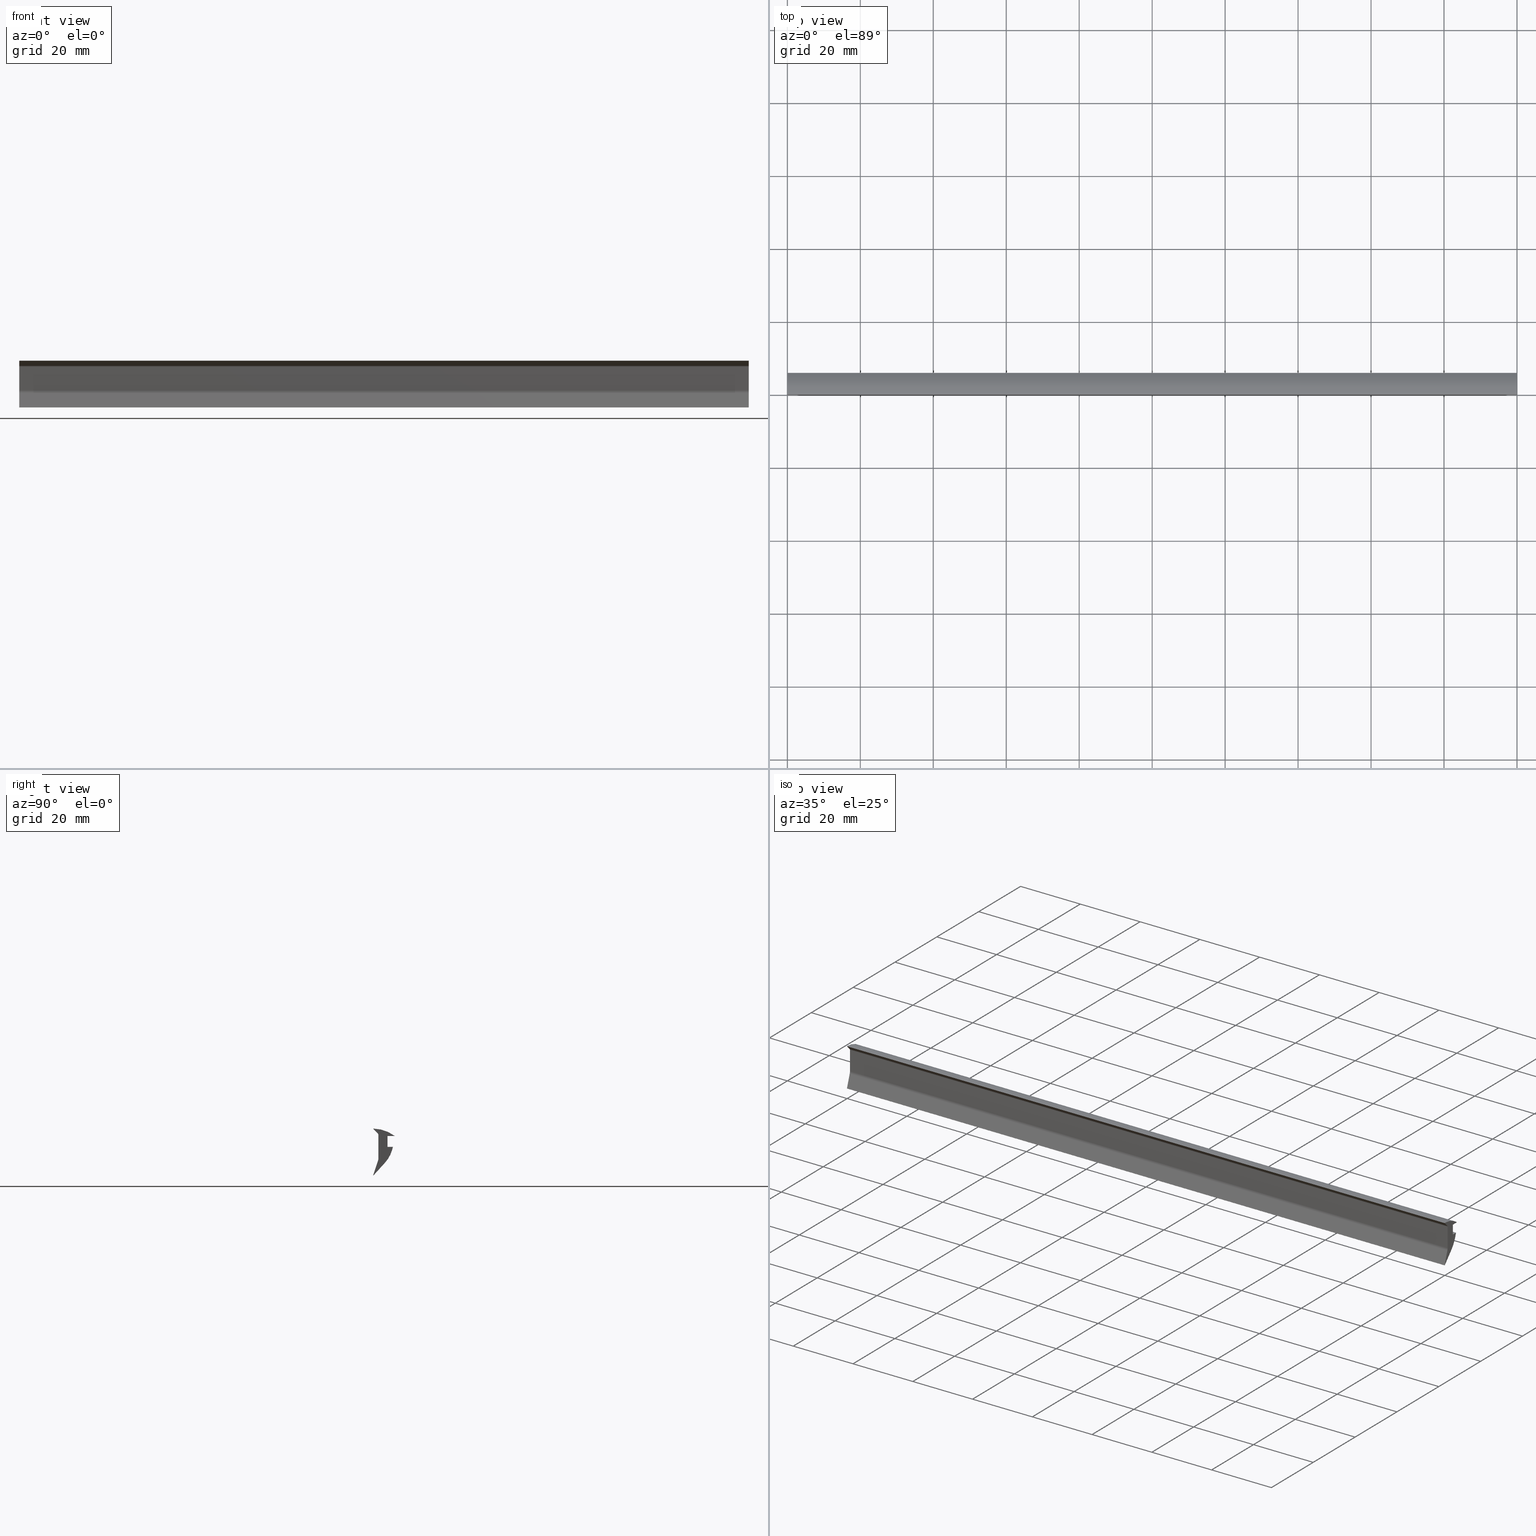
[diagram: canonical four-view strip — front | top / right | iso, engineering-drawing reading convention]
A machine part, canonical four-view strip (front | top / right | iso — engineering-drawing reading convention). The complete STEP part file that produces these views, byte-faithful:
ISO-10303-21;
HEADER;
/****************************************************************
 * Generated by software with PDE/Lib inside                    *
 * PDElib Version v4.4, created Mon 02/23/2004                  *
 * International Technegroup Inc. (www.iti-oh.com)              *
 ****************************************************************/
FILE_DESCRIPTION(('STEP AP203'),'2;1');
FILE_NAME('21.004.00.stp','2011-02-14T09:11:36',(''),(''),'2009.3.110','THINKDESIGN','');
FILE_SCHEMA(('CONFIG_CONTROL_DESIGN'));
ENDSEC;
DATA;
#2=CARTESIAN_POINT('',(199.954953107465970,0.047221813609372,12.768483040366009));
#3=DIRECTION('',(-1.0,3.081488E-033,6.123234E-017));
#4=DIRECTION('',(-2.343260E-017,0.923879532511284,-0.382683432365095));
#5=AXIS2_PLACEMENT_3D('',#2,#3,#4);
#6=CYLINDRICAL_SURFACE('',#5,0.050000000000000);
#7=CARTESIAN_POINT('',(199.954953097465960,0.048149271488415,12.818474437844795));
#8=VERTEX_POINT('',#7);
#9=CARTESIAN_POINT('',(199.954953097465960,0.011866474550043,12.733127701306680));
#10=VERTEX_POINT('',#9);
#11=CARTESIAN_POINT('',(199.954953097465960,0.047221813609371,12.768483040366007));
#12=DIRECTION('',(1.0,0.0,-6.123234E-017));
#13=DIRECTION('',(6.123234E-017,0.0,1.0));
#14=AXIS2_PLACEMENT_3D('',#11,#12,#13);
#15=CIRCLE('',#14,0.050000000000000);
#16=EDGE_CURVE('',#8,#10,#15,.T.);
#17=ORIENTED_EDGE('',*,*,#16,.F.);
#18=CARTESIAN_POINT('',(-0.045046902534029,0.047221813609371,12.818483040366013));
#19=VERTEX_POINT('',#18);
#20=CARTESIAN_POINT('',(199.954953097465960,0.047221813609371,12.818483040366001));
#21=DIRECTION('',(-1.0,0.0,0.0));
#22=VECTOR('',#21,200.0);
#23=LINE('',#20,#22);
#24=EDGE_CURVE('',#8,#19,#23,.T.);
#25=ORIENTED_EDGE('',*,*,#24,.T.);
#26=CARTESIAN_POINT('',(-0.045046902534029,0.011866474550043,12.733127701306685));
#27=VERTEX_POINT('',#26);
#28=CARTESIAN_POINT('',(-0.045046902534029,0.047221813609371,12.768483040366020));
#29=DIRECTION('',(-1.0,0.0,6.123234E-017));
#30=DIRECTION('',(6.123234E-017,0.0,1.0));
#31=AXIS2_PLACEMENT_3D('',#28,#29,#30);
#32=CIRCLE('',#31,0.050000000000000);
#33=EDGE_CURVE('',#27,#19,#32,.T.);
#34=ORIENTED_EDGE('',*,*,#33,.F.);
#35=CARTESIAN_POINT('',(199.954953097465960,0.011866474550043,12.733127701306673));
#36=DIRECTION('',(-1.0,0.0,0.0));
#37=VECTOR('',#36,200.0);
#38=LINE('',#35,#37);
#39=EDGE_CURVE('',#10,#27,#38,.T.);
#40=ORIENTED_EDGE('',*,*,#39,.F.);
#41=EDGE_LOOP('',(#17,#25,#34,#40));
#42=FACE_OUTER_BOUND('',#41,.T.);
#43=ADVANCED_FACE('',(#42),#6,.T.);
#44=CARTESIAN_POINT('',(-0.045046912534028,0.047434164902525,0.029235514233188));
#45=DIRECTION('',(1.0,0.0,-6.123234E-017));
#46=DIRECTION('',(3.580318E-017,0.811242185175564,0.584710284663760));
#47=AXIS2_PLACEMENT_3D('',#44,#45,#46);
#48=CYLINDRICAL_SURFACE('',#47,0.050000000000000);
#49=CARTESIAN_POINT('',(-0.045046902534030,0.047434164902525,-0.020764485766812));
#50=VERTEX_POINT('',#49);
#51=CARTESIAN_POINT('',(-0.045046902534030,8.881784E-016,0.045046902534030));
#52=VERTEX_POINT('',#51);
#53=CARTESIAN_POINT('',(-0.045046902534030,0.047434164902525,0.029235514233188));
#54=DIRECTION('',(-1.0,0.0,6.123234E-017));
#55=DIRECTION('',(6.123234E-017,0.0,1.0));
#56=AXIS2_PLACEMENT_3D('',#53,#54,#55);
#57=CIRCLE('',#56,0.050000000000000);
#58=EDGE_CURVE('',#50,#52,#57,.T.);
#59=ORIENTED_EDGE('',*,*,#58,.F.);
#60=CARTESIAN_POINT('',(199.954953097465960,0.047434164902525,-0.020764485766824));
#61=VERTEX_POINT('',#60);
#62=CARTESIAN_POINT('',(-0.045046902534002,0.047434164902525,-0.020764485766812));
#63=DIRECTION('',(1.0,0.0,0.0));
#64=VECTOR('',#63,199.999999999999970);
#65=LINE('',#62,#64);
#66=EDGE_CURVE('',#50,#61,#65,.T.);
#67=ORIENTED_EDGE('',*,*,#66,.T.);
#68=CARTESIAN_POINT('',(199.954953097465960,8.881784E-016,0.045046902534018));
#69=VERTEX_POINT('',#68);
#70=CARTESIAN_POINT('',(199.954953097465960,0.047434164902525,0.029235514233176));
#71=DIRECTION('',(1.0,0.0,-6.123234E-017));
#72=DIRECTION('',(6.123234E-017,0.0,1.0));
#73=AXIS2_PLACEMENT_3D('',#70,#71,#72);
#74=CIRCLE('',#73,0.050000000000000);
#75=EDGE_CURVE('',#69,#61,#74,.T.);
#76=ORIENTED_EDGE('',*,*,#75,.F.);
#77=CARTESIAN_POINT('',(-0.045046902534030,8.881784E-016,0.045046902534030));
#78=DIRECTION('',(1.0,0.0,0.0));
#79=VECTOR('',#78,200.0);
#80=LINE('',#77,#79);
#81=EDGE_CURVE('',#52,#69,#80,.T.);
#82=ORIENTED_EDGE('',*,*,#81,.F.);
#83=EDGE_LOOP('',(#59,#67,#76,#82));
#84=FACE_OUTER_BOUND('',#83,.T.);
#85=ADVANCED_FACE('',(#84),#48,.T.);
#86=CARTESIAN_POINT('',(199.954953097465960,-0.075013181669325,-0.179992642473957));
#87=DIRECTION('',(-1.0,0.0,0.0));
#88=DIRECTION('',(0.0,0.0,1.0));
#89=AXIS2_PLACEMENT_3D('',#86,#87,#88);
#90=PLANE('',#89);
#91=CARTESIAN_POINT('',(199.954953097465960,5.924986818330687,10.794373554709134));
#92=VERTEX_POINT('',#91);
#93=CARTESIAN_POINT('',(199.954953097465960,-0.138986082328844,2.731592794589620));
#94=DIRECTION('',(1.0,0.0,-6.123234E-017));
#95=DIRECTION('',(6.123234E-017,0.0,1.0));
#96=AXIS2_PLACEMENT_3D('',#93,#94,#95);
#97=CIRCLE('',#96,10.088617394156966);
#98=EDGE_CURVE('',#92,#8,#97,.T.);
#99=ORIENTED_EDGE('',*,*,#98,.T.);
#100=ORIENTED_EDGE('',*,*,#16,.T.);
#101=CARTESIAN_POINT('',(199.954953097465960,1.278540208923952,11.466453966932770));
#102=VERTEX_POINT('',#101);
#103=CARTESIAN_POINT('',(199.954953097465960,1.278540208923952,11.466453966932770));
#104=DIRECTION('',(0.0,-0.707106781186547,0.707106781186548));
#105=VECTOR('',#104,1.791347174253358);
#106=LINE('',#103,#105);
#107=EDGE_CURVE('',#102,#10,#106,.T.);
#108=ORIENTED_EDGE('',*,*,#107,.F.);
#109=CARTESIAN_POINT('',(199.954953097465960,1.424986818330675,11.112900576339499));
#110=VERTEX_POINT('',#109);
#111=CARTESIAN_POINT('',(199.954953097465960,0.924986818330670,11.112900576339499));
#112=DIRECTION('',(1.0,0.0,-6.123234E-017));
#113=DIRECTION('',(6.123234E-017,0.0,1.0));
#114=AXIS2_PLACEMENT_3D('',#111,#112,#113);
#115=CIRCLE('',#114,0.500000000000004);
#116=EDGE_CURVE('',#110,#102,#115,.T.);
#117=ORIENTED_EDGE('',*,*,#116,.F.);
#118=CARTESIAN_POINT('',(199.954953097465960,1.424986818330675,4.644562677862806));
#119=VERTEX_POINT('',#118);
#120=CARTESIAN_POINT('',(199.954953097465960,1.424986818330675,4.644562677862806));
#121=DIRECTION('',(0.0,0.0,1.0));
#122=VECTOR('',#121,6.468337898476692);
#123=LINE('',#120,#122);
#124=EDGE_CURVE('',#119,#110,#123,.T.);
#125=ORIENTED_EDGE('',*,*,#124,.F.);
#126=CARTESIAN_POINT('',(199.954953097465960,1.322353414431703,4.012107145829130));
#127=VERTEX_POINT('',#126);
#128=CARTESIAN_POINT('',(199.954953097465960,-0.575013181669322,4.644562677862806));
#129=DIRECTION('',(1.0,0.0,-6.123234E-017));
#130=DIRECTION('',(6.123234E-017,0.0,1.0));
#131=AXIS2_PLACEMENT_3D('',#128,#129,#130);
#132=CIRCLE('',#131,1.999999999999997);
#133=EDGE_CURVE('',#127,#119,#132,.T.);
#134=ORIENTED_EDGE('',*,*,#133,.F.);
#135=CARTESIAN_POINT('',(199.954953097465960,0.0,0.045046902534018));
#136=DIRECTION('',(0.0,0.316227766016838,0.948683298050514));
#137=VECTOR('',#136,4.181648661304757);
#138=LINE('',#135,#137);
#139=EDGE_CURVE('',#69,#127,#138,.T.);
#140=ORIENTED_EDGE('',*,*,#139,.F.);
#141=ORIENTED_EDGE('',*,*,#75,.T.);
#142=CARTESIAN_POINT('',(199.954953097465960,0.084450785399607,-0.004376534305630));
#143=VERTEX_POINT('',#142);
#144=CARTESIAN_POINT('',(199.954953097465960,0.047434164902525,0.029235514233176));
#145=DIRECTION('',(1.0,0.0,-6.123234E-017));
#146=DIRECTION('',(6.123234E-017,0.0,1.0));
#147=AXIS2_PLACEMENT_3D('',#144,#145,#146);
#148=CIRCLE('',#147,0.050000000000000);
#149=EDGE_CURVE('',#61,#143,#148,.T.);
#150=ORIENTED_EDGE('',*,*,#149,.T.);
#151=CARTESIAN_POINT('',(199.954953097465960,3.260110596891967,3.492946573928418));
#152=VERTEX_POINT('',#151);
#153=CARTESIAN_POINT('',(199.954953097465960,0.084450785399607,-0.004376534305630));
#154=DIRECTION('',(0.0,0.672240970776105,0.740332409941643));
#155=VECTOR('',#154,4.723990279595793);
#156=LINE('',#153,#155);
#157=EDGE_CURVE('',#143,#152,#156,.T.);
#158=ORIENTED_EDGE('',*,*,#157,.T.);
#159=CARTESIAN_POINT('',(199.954953097465960,5.116007533023849,6.770768932189687));
#160=VERTEX_POINT('',#159);
#161=CARTESIAN_POINT('',(199.954953097465960,-3.071482191688734,9.242196540021341));
#162=DIRECTION('',(1.0,0.0,-6.123234E-017));
#163=DIRECTION('',(6.123234E-017,0.0,1.0));
#164=AXIS2_PLACEMENT_3D('',#161,#162,#163);
#165=CIRCLE('',#164,8.552364726379867);
#166=EDGE_CURVE('',#152,#160,#165,.T.);
#167=ORIENTED_EDGE('',*,*,#166,.T.);
#168=CARTESIAN_POINT('',(199.954953097465960,5.424986818330675,7.794373554709138));
#169=VERTEX_POINT('',#168);
#170=CARTESIAN_POINT('',(199.954953097465960,5.116007533023849,6.770768932189687));
#171=DIRECTION('',(0.0,0.288975936703039,0.957336360955021));
#172=VECTOR('',#171,1.069221502772885);
#173=LINE('',#170,#172);
#174=EDGE_CURVE('',#160,#169,#173,.T.);
#175=ORIENTED_EDGE('',*,*,#174,.T.);
#176=CARTESIAN_POINT('',(199.954953097465960,3.924986818330675,7.794373554709138));
#177=VERTEX_POINT('',#176);
#178=CARTESIAN_POINT('',(199.954953097465960,5.424986818330675,7.794373554709138));
#179=DIRECTION('',(0.0,-1.0,0.0));
#180=VECTOR('',#179,1.500000000000000);
#181=LINE('',#178,#180);
#182=EDGE_CURVE('',#169,#177,#181,.T.);
#183=ORIENTED_EDGE('',*,*,#182,.T.);
#184=CARTESIAN_POINT('',(199.954953097465960,3.924986818330675,10.794373554709139));
#185=VERTEX_POINT('',#184);
#186=CARTESIAN_POINT('',(199.954953097465960,3.924986818330675,7.794373554709138));
#187=DIRECTION('',(0.0,0.0,1.0));
#188=VECTOR('',#187,3.000000000000001);
#189=LINE('',#186,#188);
#190=EDGE_CURVE('',#177,#185,#189,.T.);
#191=ORIENTED_EDGE('',*,*,#190,.T.);
#192=CARTESIAN_POINT('',(199.954953097465960,3.924986818330675,10.794373554709139));
#193=DIRECTION('',(0.0,1.0,0.0));
#194=VECTOR('',#193,2.000000000000012);
#195=LINE('',#192,#194);
#196=EDGE_CURVE('',#185,#92,#195,.T.);
#197=ORIENTED_EDGE('',*,*,#196,.T.);
#198=EDGE_LOOP('',(#99,#100,#108,#117,#125,#134,#140,#141,#150,#158,#167,#175,#183,#191,#197));
#199=FACE_OUTER_BOUND('',#198,.T.);
#200=ADVANCED_FACE('',(#199),#90,.F.);
#201=CARTESIAN_POINT('',(-0.045046902534030,-0.075013181669325,-0.179992642473945));
#202=DIRECTION('',(-1.0,0.0,0.0));
#203=DIRECTION('',(0.0,0.0,1.0));
#204=AXIS2_PLACEMENT_3D('',#201,#202,#203);
#205=PLANE('',#204);
#206=CARTESIAN_POINT('',(-0.045046902534029,1.278540208923952,11.466453966932782));
#207=VERTEX_POINT('',#206);
#208=CARTESIAN_POINT('',(-0.045046902534029,1.278540208923950,11.466453966932781));
#209=DIRECTION('',(4.260918E-017,-0.707106781186547,0.707106781186548));
#210=VECTOR('',#209,1.791347174253353);
#211=LINE('',#208,#210);
#212=EDGE_CURVE('',#207,#27,#211,.T.);
#213=ORIENTED_EDGE('',*,*,#212,.T.);
#214=ORIENTED_EDGE('',*,*,#33,.T.);
#215=CARTESIAN_POINT('',(-0.045046902534030,5.924986818330687,10.794373554709146));
#216=VERTEX_POINT('',#215);
#217=CARTESIAN_POINT('',(-0.045046902534030,-0.138986082328844,2.731592794589633));
#218=DIRECTION('',(1.0,0.0,-6.123234E-017));
#219=DIRECTION('',(6.123234E-017,0.0,1.0));
#220=AXIS2_PLACEMENT_3D('',#217,#218,#219);
#221=CIRCLE('',#220,10.088617394156966);
#222=EDGE_CURVE('',#216,#19,#221,.T.);
#223=ORIENTED_EDGE('',*,*,#222,.F.);
#224=CARTESIAN_POINT('',(-0.045046902534030,3.924986818330675,10.794373554709152));
#225=VERTEX_POINT('',#224);
#226=CARTESIAN_POINT('',(-0.045046902534030,3.924986818330675,10.794373554709152));
#227=DIRECTION('',(0.0,1.0,0.0));
#228=VECTOR('',#227,2.000000000000012);
#229=LINE('',#226,#228);
#230=EDGE_CURVE('',#225,#216,#229,.T.);
#231=ORIENTED_EDGE('',*,*,#230,.F.);
#232=CARTESIAN_POINT('',(-0.045046902534030,3.924986818330675,7.794373554709151));
#233=VERTEX_POINT('',#232);
#234=CARTESIAN_POINT('',(-0.045046902534030,3.924986818330675,7.794373554709151));
#235=DIRECTION('',(0.0,0.0,1.0));
#236=VECTOR('',#235,2.999999999999999);
#237=LINE('',#234,#236);
#238=EDGE_CURVE('',#233,#225,#237,.T.);
#239=ORIENTED_EDGE('',*,*,#238,.F.);
#240=CARTESIAN_POINT('',(-0.045046902534030,5.424986818330675,7.794373554709151));
#241=VERTEX_POINT('',#240);
#242=CARTESIAN_POINT('',(-0.045046902534030,5.424986818330675,7.794373554709151));
#243=DIRECTION('',(0.0,-1.0,0.0));
#244=VECTOR('',#243,1.500000000000000);
#245=LINE('',#242,#244);
#246=EDGE_CURVE('',#241,#233,#245,.T.);
#247=ORIENTED_EDGE('',*,*,#246,.F.);
#248=CARTESIAN_POINT('',(-0.045046902534030,5.116007533023849,6.770768932189699));
#249=VERTEX_POINT('',#248);
#250=CARTESIAN_POINT('',(-0.045046902534030,5.116007533023850,6.770768932189699));
#251=DIRECTION('',(5.840702E-017,0.288975936703039,0.957336360955021));
#252=VECTOR('',#251,1.069221502772885);
#253=LINE('',#250,#252);
#254=EDGE_CURVE('',#249,#241,#253,.T.);
#255=ORIENTED_EDGE('',*,*,#254,.F.);
#256=CARTESIAN_POINT('',(-0.045046902534030,3.260110596891967,3.492946573928430));
#257=VERTEX_POINT('',#256);
#258=CARTESIAN_POINT('',(-0.045046902534030,-3.071482191688734,9.242196540021354));
#259=DIRECTION('',(1.0,0.0,-6.123234E-017));
#260=DIRECTION('',(6.123234E-017,0.0,1.0));
#261=AXIS2_PLACEMENT_3D('',#258,#259,#260);
#262=CIRCLE('',#261,8.552364726379867);
#263=EDGE_CURVE('',#257,#249,#262,.T.);
#264=ORIENTED_EDGE('',*,*,#263,.F.);
#265=CARTESIAN_POINT('',(-0.045046902534030,0.084450785399607,-0.004376534305617));
#266=VERTEX_POINT('',#265);
#267=CARTESIAN_POINT('',(-0.045046902534030,0.084450785399607,-0.004376534305617));
#268=DIRECTION('',(4.553475E-017,0.672240970776105,0.740332409941643));
#269=VECTOR('',#268,4.723990279595793);
#270=LINE('',#267,#269);
#271=EDGE_CURVE('',#266,#257,#270,.T.);
#272=ORIENTED_EDGE('',*,*,#271,.F.);
#273=CARTESIAN_POINT('',(-0.045046902534030,0.047434164902525,0.029235514233188));
#274=DIRECTION('',(-1.0,0.0,6.123234E-017));
#275=DIRECTION('',(6.123234E-017,0.0,1.0));
#276=AXIS2_PLACEMENT_3D('',#273,#274,#275);
#277=CIRCLE('',#276,0.050000000000000);
#278=EDGE_CURVE('',#266,#50,#277,.T.);
#279=ORIENTED_EDGE('',*,*,#278,.T.);
#280=ORIENTED_EDGE('',*,*,#58,.T.);
#281=CARTESIAN_POINT('',(-0.045046902534030,1.322353414431703,4.012107145829142));
#282=VERTEX_POINT('',#281);
#283=CARTESIAN_POINT('',(-0.045046902534030,0.0,0.045046902534030));
#284=DIRECTION('',(5.807788E-017,0.316227766016838,0.948683298050514));
#285=VECTOR('',#284,4.181648661304757);
#286=LINE('',#283,#285);
#287=EDGE_CURVE('',#52,#282,#286,.T.);
#288=ORIENTED_EDGE('',*,*,#287,.T.);
#289=CARTESIAN_POINT('',(-0.045046902534030,1.424986818330675,4.644562677862819));
#290=VERTEX_POINT('',#289);
#291=CARTESIAN_POINT('',(-0.045046902534030,-0.575013181669322,4.644562677862819));
#292=DIRECTION('',(1.0,0.0,-6.123234E-017));
#293=DIRECTION('',(6.123234E-017,0.0,1.0));
#294=AXIS2_PLACEMENT_3D('',#291,#292,#293);
#295=CIRCLE('',#294,1.999999999999997);
#296=EDGE_CURVE('',#282,#290,#295,.T.);
#297=ORIENTED_EDGE('',*,*,#296,.T.);
#298=CARTESIAN_POINT('',(-0.045046902534030,1.424986818330675,11.112900576339511));
#299=VERTEX_POINT('',#298);
#300=CARTESIAN_POINT('',(-0.045046902534030,1.424986818330675,4.644562677862819));
#301=DIRECTION('',(0.0,0.0,1.0));
#302=VECTOR('',#301,6.468337898476690);
#303=LINE('',#300,#302);
#304=EDGE_CURVE('',#290,#299,#303,.T.);
#305=ORIENTED_EDGE('',*,*,#304,.T.);
#306=CARTESIAN_POINT('',(-0.045046902534030,0.924986818330670,11.112900576339511));
#307=DIRECTION('',(1.0,0.0,-6.123234E-017));
#308=DIRECTION('',(6.123234E-017,0.0,1.0));
#309=AXIS2_PLACEMENT_3D('',#306,#307,#308);
#310=CIRCLE('',#309,0.500000000000004);
#311=EDGE_CURVE('',#299,#207,#310,.T.);
#312=ORIENTED_EDGE('',*,*,#311,.T.);
#313=EDGE_LOOP('',(#213,#214,#223,#231,#239,#247,#255,#264,#272,#279,#280,#288,#297,#305,#312));
#314=FACE_OUTER_BOUND('',#313,.T.);
#315=ADVANCED_FACE('',(#314),#205,.T.);
#316=CARTESIAN_POINT('',(209.954953097465960,3.849986818330675,7.794373554709138));
#317=DIRECTION('',(0.0,0.0,-1.0));
#318=DIRECTION('',(-1.0,0.0,0.0));
#319=AXIS2_PLACEMENT_3D('',#316,#317,#318);
#320=PLANE('',#319);
#321=ORIENTED_EDGE('',*,*,#182,.F.);
#322=CARTESIAN_POINT('',(199.954953097465960,5.424986818330675,7.794373554709138));
#323=DIRECTION('',(-1.0,0.0,0.0));
#324=VECTOR('',#323,200.0);
#325=LINE('',#322,#324);
#326=EDGE_CURVE('',#169,#241,#325,.T.);
#327=ORIENTED_EDGE('',*,*,#326,.T.);
#328=ORIENTED_EDGE('',*,*,#246,.T.);
#329=CARTESIAN_POINT('',(199.954953097465960,3.924986818330675,7.794373554709138));
#330=DIRECTION('',(-1.0,0.0,0.0));
#331=VECTOR('',#330,200.0);
#332=LINE('',#329,#331);
#333=EDGE_CURVE('',#177,#233,#332,.T.);
#334=ORIENTED_EDGE('',*,*,#333,.F.);
#335=EDGE_LOOP('',(#321,#327,#328,#334));
#336=FACE_OUTER_BOUND('',#335,.T.);
#337=ADVANCED_FACE('',(#336),#320,.F.);
#338=CARTESIAN_POINT('',(-10.045046902534031,3.924986818330675,7.644373554709151));
#339=DIRECTION('',(0.0,-1.0,0.0));
#340=DIRECTION('',(1.0,0.0,0.0));
#341=AXIS2_PLACEMENT_3D('',#338,#339,#340);
#342=PLANE('',#341);
#343=ORIENTED_EDGE('',*,*,#333,.T.);
#344=ORIENTED_EDGE('',*,*,#238,.T.);
#345=CARTESIAN_POINT('',(199.954953097465960,3.924986818330675,10.794373554709139));
#346=DIRECTION('',(-1.0,0.0,0.0));
#347=VECTOR('',#346,200.0);
#348=LINE('',#345,#347);
#349=EDGE_CURVE('',#185,#225,#348,.T.);
#350=ORIENTED_EDGE('',*,*,#349,.F.);
#351=ORIENTED_EDGE('',*,*,#190,.F.);
#352=EDGE_LOOP('',(#343,#344,#350,#351));
#353=FACE_OUTER_BOUND('',#352,.T.);
#354=ADVANCED_FACE('',(#353),#342,.F.);
#355=CARTESIAN_POINT('',(-10.045046902534031,3.824986818330674,10.794373554709152));
#356=DIRECTION('',(0.0,0.0,1.0));
#357=DIRECTION('',(1.0,0.0,0.0));
#358=AXIS2_PLACEMENT_3D('',#355,#356,#357);
#359=PLANE('',#358);
#360=ORIENTED_EDGE('',*,*,#349,.T.);
#361=ORIENTED_EDGE('',*,*,#230,.T.);
#362=CARTESIAN_POINT('',(199.954953097465960,5.924986818330676,10.794373554709139));
#363=DIRECTION('',(-1.0,0.0,0.0));
#364=VECTOR('',#363,200.0);
#365=LINE('',#362,#364);
#366=EDGE_CURVE('',#92,#216,#365,.T.);
#367=ORIENTED_EDGE('',*,*,#366,.F.);
#368=ORIENTED_EDGE('',*,*,#196,.F.);
#369=EDGE_LOOP('',(#360,#361,#367,#368));
#370=FACE_OUTER_BOUND('',#369,.T.);
#371=ADVANCED_FACE('',(#370),#359,.F.);
#372=CARTESIAN_POINT('',(199.954953107465970,-0.138986082328844,2.731592794589620));
#373=DIRECTION('',(-1.0,0.0,6.123234E-017));
#374=DIRECTION('',(6.123234E-017,0.0,1.0));
#375=AXIS2_PLACEMENT_3D('',#372,#373,#374);
#376=CYLINDRICAL_SURFACE('',#375,10.088617394156966);
#377=ORIENTED_EDGE('',*,*,#222,.T.);
#378=CARTESIAN_POINT('',(-0.045046902534001,0.048149271488415,12.818474437844808));
#379=DIRECTION('',(1.0,0.0,0.0));
#380=VECTOR('',#379,199.999999999999970);
#381=LINE('',#378,#380);
#382=EDGE_CURVE('',#19,#8,#381,.T.);
#383=ORIENTED_EDGE('',*,*,#382,.T.);
#384=ORIENTED_EDGE('',*,*,#98,.F.);
#385=ORIENTED_EDGE('',*,*,#366,.T.);
#386=EDGE_LOOP('',(#377,#383,#384,#385));
#387=FACE_OUTER_BOUND('',#386,.T.);
#388=ADVANCED_FACE('',(#387),#376,.T.);
#389=CARTESIAN_POINT('',(199.954953107465970,-0.575013181669322,4.644562677862806));
#390=DIRECTION('',(-1.0,0.0,6.123234E-017));
#391=DIRECTION('',(6.123234E-017,0.0,1.0));
#392=AXIS2_PLACEMENT_3D('',#389,#390,#391);
#393=CYLINDRICAL_SURFACE('',#392,1.999999999999997);
#394=ORIENTED_EDGE('',*,*,#133,.T.);
#395=CARTESIAN_POINT('',(199.954953097465960,1.424986818330675,4.644562677862806));
#396=DIRECTION('',(-1.0,0.0,0.0));
#397=VECTOR('',#396,200.0);
#398=LINE('',#395,#397);
#399=EDGE_CURVE('',#119,#290,#398,.T.);
#400=ORIENTED_EDGE('',*,*,#399,.T.);
#401=ORIENTED_EDGE('',*,*,#296,.F.);
#402=CARTESIAN_POINT('',(199.954953097465960,1.322353414431703,4.012107145829130));
#403=DIRECTION('',(-1.0,0.0,0.0));
#404=VECTOR('',#403,200.0);
#405=LINE('',#402,#404);
#406=EDGE_CURVE('',#127,#282,#405,.T.);
#407=ORIENTED_EDGE('',*,*,#406,.F.);
#408=EDGE_LOOP('',(#394,#400,#401,#407));
#409=FACE_OUTER_BOUND('',#408,.T.);
#410=ADVANCED_FACE('',(#409),#393,.F.);
#411=CARTESIAN_POINT('',(-10.045046902534031,1.424986818330675,4.321145782938985));
#412=DIRECTION('',(0.0,-1.0,0.0));
#413=DIRECTION('',(1.0,0.0,0.0));
#414=AXIS2_PLACEMENT_3D('',#411,#412,#413);
#415=PLANE('',#414);
#416=ORIENTED_EDGE('',*,*,#124,.T.);
#417=CARTESIAN_POINT('',(199.954953097465960,1.424986818330675,11.112900576339499));
#418=DIRECTION('',(-1.0,0.0,0.0));
#419=VECTOR('',#418,200.0);
#420=LINE('',#417,#419);
#421=EDGE_CURVE('',#110,#299,#420,.T.);
#422=ORIENTED_EDGE('',*,*,#421,.T.);
#423=ORIENTED_EDGE('',*,*,#304,.F.);
#424=ORIENTED_EDGE('',*,*,#399,.F.);
#425=EDGE_LOOP('',(#416,#422,#423,#424));
#426=FACE_OUTER_BOUND('',#425,.T.);
#427=ADVANCED_FACE('',(#426),#415,.T.);
#428=CARTESIAN_POINT('',(199.954953107465970,0.924986818330670,11.112900576339499));
#429=DIRECTION('',(-1.0,0.0,6.123234E-017));
#430=DIRECTION('',(6.123234E-017,0.0,1.0));
#431=AXIS2_PLACEMENT_3D('',#428,#429,#430);
#432=CYLINDRICAL_SURFACE('',#431,0.500000000000004);
#433=ORIENTED_EDGE('',*,*,#116,.T.);
#434=CARTESIAN_POINT('',(199.954953097465960,1.278540208923952,11.466453966932770));
#435=DIRECTION('',(-1.0,0.0,0.0));
#436=VECTOR('',#435,200.0);
#437=LINE('',#434,#436);
#438=EDGE_CURVE('',#102,#207,#437,.T.);
#439=ORIENTED_EDGE('',*,*,#438,.T.);
#440=ORIENTED_EDGE('',*,*,#311,.F.);
#441=ORIENTED_EDGE('',*,*,#421,.F.);
#442=EDGE_LOOP('',(#433,#439,#440,#441));
#443=FACE_OUTER_BOUND('',#442,.T.);
#444=ADVANCED_FACE('',(#443),#432,.F.);
#445=CARTESIAN_POINT('',(209.954953097465960,1.341873895642646,11.403120280214072));
#446=DIRECTION('',(-4.329780E-017,-0.707106781186548,-0.707106781186547));
#447=DIRECTION('',(4.329780E-017,-0.707106781186547,0.707106781186548));
#448=AXIS2_PLACEMENT_3D('',#445,#446,#447);
#449=PLANE('',#448);
#450=ORIENTED_EDGE('',*,*,#107,.T.);
#451=ORIENTED_EDGE('',*,*,#39,.T.);
#452=ORIENTED_EDGE('',*,*,#212,.F.);
#453=ORIENTED_EDGE('',*,*,#438,.F.);
#454=EDGE_LOOP('',(#450,#451,#452,#453));
#455=FACE_OUTER_BOUND('',#454,.T.);
#456=ADVANCED_FACE('',(#455),#449,.T.);
#457=CARTESIAN_POINT('',(200.466798134112080,-0.075013181669325,-0.179992642473957));
#458=DIRECTION('',(1.936337E-017,-0.948683298050514,0.316227766016838));
#459=DIRECTION('',(5.809010E-017,0.316227766016838,0.948683298050514));
#460=AXIS2_PLACEMENT_3D('',#457,#458,#459);
#461=PLANE('',#460);
#462=ORIENTED_EDGE('',*,*,#287,.F.);
#463=ORIENTED_EDGE('',*,*,#81,.T.);
#464=ORIENTED_EDGE('',*,*,#139,.T.);
#465=ORIENTED_EDGE('',*,*,#406,.T.);
#466=EDGE_LOOP('',(#462,#463,#464,#465));
#467=FACE_OUTER_BOUND('',#466,.T.);
#468=ADVANCED_FACE('',(#467),#461,.T.);
#469=CARTESIAN_POINT('',(209.954953097465960,-0.074332205175010,-0.179242689717332));
#470=DIRECTION('',(4.116289E-017,-0.740332409941643,0.672240970776105));
#471=DIRECTION('',(4.533229E-017,0.672240970776105,0.740332409941643));
#472=AXIS2_PLACEMENT_3D('',#469,#470,#471);
#473=PLANE('',#472);
#474=ORIENTED_EDGE('',*,*,#157,.F.);
#475=CARTESIAN_POINT('',(199.954953097465960,0.084450785399607,-0.004376534305630));
#476=DIRECTION('',(-1.0,0.0,0.0));
#477=VECTOR('',#476,200.0);
#478=LINE('',#475,#477);
#479=EDGE_CURVE('',#143,#266,#478,.T.);
#480=ORIENTED_EDGE('',*,*,#479,.T.);
#481=ORIENTED_EDGE('',*,*,#271,.T.);
#482=CARTESIAN_POINT('',(199.954953097465960,3.260110596891967,3.492946573928418));
#483=DIRECTION('',(-1.0,0.0,0.0));
#484=VECTOR('',#483,200.0);
#485=LINE('',#482,#484);
#486=EDGE_CURVE('',#152,#257,#485,.T.);
#487=ORIENTED_EDGE('',*,*,#486,.F.);
#488=EDGE_LOOP('',(#474,#480,#481,#487));
#489=FACE_OUTER_BOUND('',#488,.T.);
#490=ADVANCED_FACE('',(#489),#473,.F.);
#491=CARTESIAN_POINT('',(199.954953107465970,-3.071482191688734,9.242196540021341));
#492=DIRECTION('',(-1.0,0.0,6.123234E-017));
#493=DIRECTION('',(6.123234E-017,0.0,1.0));
#494=AXIS2_PLACEMENT_3D('',#491,#492,#493);
#495=CYLINDRICAL_SURFACE('',#494,8.552364726379867);
#496=ORIENTED_EDGE('',*,*,#486,.T.);
#497=ORIENTED_EDGE('',*,*,#263,.T.);
#498=CARTESIAN_POINT('',(199.954953097465960,5.116007533023849,6.770768932189687));
#499=DIRECTION('',(-1.0,0.0,0.0));
#500=VECTOR('',#499,200.0);
#501=LINE('',#498,#500);
#502=EDGE_CURVE('',#160,#249,#501,.T.);
#503=ORIENTED_EDGE('',*,*,#502,.F.);
#504=ORIENTED_EDGE('',*,*,#166,.F.);
#505=EDGE_LOOP('',(#496,#497,#503,#504));
#506=FACE_OUTER_BOUND('',#505,.T.);
#507=ADVANCED_FACE('',(#506),#495,.T.);
#508=CARTESIAN_POINT('',(209.954953097465960,5.100558568758508,6.719588701063714));
#509=DIRECTION('',(1.769467E-017,-0.957336360955021,0.288975936703039));
#510=DIRECTION('',(5.861995E-017,0.288975936703039,0.957336360955021));
#511=AXIS2_PLACEMENT_3D('',#508,#509,#510);
#512=PLANE('',#511);
#513=ORIENTED_EDGE('',*,*,#502,.T.);
#514=ORIENTED_EDGE('',*,*,#254,.T.);
#515=ORIENTED_EDGE('',*,*,#326,.F.);
#516=ORIENTED_EDGE('',*,*,#174,.F.);
#517=EDGE_LOOP('',(#513,#514,#515,#516));
#518=FACE_OUTER_BOUND('',#517,.T.);
#519=ADVANCED_FACE('',(#518),#512,.F.);
#520=CARTESIAN_POINT('',(-0.045046912534028,0.047434164902525,0.029235514233188));
#521=DIRECTION('',(1.0,3.081488E-033,-6.123234E-017));
#522=DIRECTION('',(5.599062E-017,-0.404820348564576,0.914396240908751));
#523=AXIS2_PLACEMENT_3D('',#520,#521,#522);
#524=CYLINDRICAL_SURFACE('',#523,0.050000000000000);
#525=ORIENTED_EDGE('',*,*,#66,.F.);
#526=ORIENTED_EDGE('',*,*,#278,.F.);
#527=ORIENTED_EDGE('',*,*,#479,.F.);
#528=ORIENTED_EDGE('',*,*,#149,.F.);
#529=EDGE_LOOP('',(#525,#526,#527,#528));
#530=FACE_OUTER_BOUND('',#529,.T.);
#531=ADVANCED_FACE('',(#530),#524,.T.);
#532=CARTESIAN_POINT('',(199.954953107465970,0.047221813609371,12.768483040366007));
#533=DIRECTION('',(-1.0,9.629650E-035,6.123234E-017));
#534=DIRECTION('',(-6.122971E-017,-0.009274977739983,-0.999956986468880));
#535=AXIS2_PLACEMENT_3D('',#532,#533,#534);
#536=CYLINDRICAL_SURFACE('',#535,0.050000000000000);
#537=ORIENTED_EDGE('',*,*,#24,.F.);
#538=ORIENTED_EDGE('',*,*,#382,.F.);
#539=EDGE_LOOP('',(#537,#538));
#540=FACE_OUTER_BOUND('',#539,.T.);
#541=ADVANCED_FACE('',(#540),#536,.T.);
#542=CLOSED_SHELL('',(#43,#85,#200,#315,#337,#354,#371,#388,#410,#427,#444,#456,#468,#490,#507,#519,#531,#541));
#543=MANIFOLD_SOLID_BREP('Importato1',#542);
#549=(NAMED_UNIT(*)PLANE_ANGLE_UNIT()SI_UNIT($,.RADIAN.));
#550=DIMENSIONAL_EXPONENTS(0.0,0.0,0.0,0.0,0.0,0.0,0.0);
#551=PLANE_ANGLE_MEASURE_WITH_UNIT(PLANE_ANGLE_MEASURE(0.017453292500000),#549);
#555=(CONVERSION_BASED_UNIT('DEGREE',#551)NAMED_UNIT(#550)PLANE_ANGLE_UNIT());
#559=(NAMED_UNIT(*)SI_UNIT($,.STERADIAN.)SOLID_ANGLE_UNIT());
#563=(LENGTH_UNIT()NAMED_UNIT(*)SI_UNIT(.MILLI.,.METRE.));
#565=UNCERTAINTY_MEASURE_WITH_UNIT(LENGTH_MEASURE(0.001000000000000),#563,'DISTANCE_ACCURACY_VALUE','');
#567=(GEOMETRIC_REPRESENTATION_CONTEXT(3)GLOBAL_UNCERTAINTY_ASSIGNED_CONTEXT((#565))GLOBAL_UNIT_ASSIGNED_CONTEXT((#555,#559,#563))REPRESENTATION_CONTEXT('thinkdesign','2009.3.110'));
#568=ADVANCED_BREP_SHAPE_REPRESENTATION('',(#543),#567);
#569=APPLICATION_CONTEXT('configuration controlled 3D designs of mechanical parts and assemblies');
#570=APPLICATION_PROTOCOL_DEFINITION('International Standard','config_control_design',1995,#569);
#571=MECHANICAL_CONTEXT('None',#569,'mechanical');
#572=PRODUCT('None','None','None',(#571));
#573=PRODUCT_RELATED_PRODUCT_CATEGORY('detail',$,(#572));
#574=PRODUCT_CATEGORY('part',$);
#575=PRODUCT_CATEGORY_RELATIONSHIP('None','None',#574,#573);
#576=PERSON('PERSON1','None','None',$,$,$);
#577=ORGANIZATION('','None','None');
#578=PERSON_AND_ORGANIZATION(#576,#577);
#579=PERSON_AND_ORGANIZATION_ROLE('design_owner');
#580=CC_DESIGN_PERSON_AND_ORGANIZATION_ASSIGNMENT(#578,#579,(#572));
#581=PRODUCT_DEFINITION_FORMATION_WITH_SPECIFIED_SOURCE('None','None',#572,.NOT_KNOWN.);
#582=PERSON('PERSON2','None','None',$,$,$);
#583=ORGANIZATION('','None','None');
#584=PERSON_AND_ORGANIZATION(#582,#583);
#585=PERSON_AND_ORGANIZATION_ROLE('creator');
#586=CC_DESIGN_PERSON_AND_ORGANIZATION_ASSIGNMENT(#584,#585,(#581));
#587=PERSON('PERSON3','None','None',$,$,$);
#588=ORGANIZATION('','None','None');
#589=PERSON_AND_ORGANIZATION(#587,#588);
#590=PERSON_AND_ORGANIZATION_ROLE('part_supplier');
#591=CC_DESIGN_PERSON_AND_ORGANIZATION_ASSIGNMENT(#589,#590,(#581));
#592=APPROVAL_STATUS('approved');
#593=APPROVAL(#592,'None');
#594=PERSON('PERSON4','None','None',$,$,$);
#595=ORGANIZATION('','None','None');
#596=PERSON_AND_ORGANIZATION(#594,#595);
#597=APPROVAL_ROLE('None');
#598=APPROVAL_PERSON_ORGANIZATION(#596,#593,#597);
#599=CALENDAR_DATE(2011,14,2);
#600=COORDINATED_UNIVERSAL_TIME_OFFSET(0,0,.AHEAD.);
#601=LOCAL_TIME(9,11,36.0,#600);
#602=DATE_AND_TIME(#599,#601);
#603=APPROVAL_DATE_TIME(#602,#593);
#604=CC_DESIGN_APPROVAL(#593,(#581));
#605=SECURITY_CLASSIFICATION_LEVEL('unclassified');
#606=SECURITY_CLASSIFICATION('None','None',#605);
#607=CC_DESIGN_SECURITY_CLASSIFICATION(#606,(#581));
#608=APPROVAL_STATUS('approved');
#609=APPROVAL(#608,'None');
#610=PERSON('PERSON5','None','None',$,$,$);
#611=ORGANIZATION('','None','None');
#612=PERSON_AND_ORGANIZATION(#610,#611);
#613=APPROVAL_ROLE('None');
#614=APPROVAL_PERSON_ORGANIZATION(#612,#609,#613);
#615=CALENDAR_DATE(2011,14,2);
#616=COORDINATED_UNIVERSAL_TIME_OFFSET(0,0,.AHEAD.);
#617=LOCAL_TIME(9,11,36.0,#616);
#618=DATE_AND_TIME(#615,#617);
#619=APPROVAL_DATE_TIME(#618,#609);
#620=CC_DESIGN_APPROVAL(#609,(#606));
#621=PERSON('PERSON6','None','None',$,$,$);
#622=ORGANIZATION('','None','None');
#623=PERSON_AND_ORGANIZATION(#621,#622);
#624=PERSON_AND_ORGANIZATION_ROLE('classification_officer');
#625=CC_DESIGN_PERSON_AND_ORGANIZATION_ASSIGNMENT(#623,#624,(#606));
#626=DATE_TIME_ROLE('classification_date');
#627=CALENDAR_DATE(2011,14,2);
#628=COORDINATED_UNIVERSAL_TIME_OFFSET(0,0,.AHEAD.);
#629=LOCAL_TIME(9,11,36.0,#628);
#630=DATE_AND_TIME(#627,#629);
#631=CC_DESIGN_DATE_AND_TIME_ASSIGNMENT(#630,#626,(#606));
#632=DESIGN_CONTEXT('part definition',#569,'design');
#633=DOCUMENT_TYPE('cad_filename');
#634=DOCUMENT('None','None','None',#633);
#635=PRODUCT_DEFINITION_WITH_ASSOCIATED_DOCUMENTS('None','None',#581,#632,(#634));
#636=PERSON('PERSON7','None','None',$,$,$);
#637=ORGANIZATION('','None','None');
#638=PERSON_AND_ORGANIZATION(#636,#637);
#639=PERSON_AND_ORGANIZATION_ROLE('creator');
#640=CC_DESIGN_PERSON_AND_ORGANIZATION_ASSIGNMENT(#638,#639,(#635));
#641=DATE_TIME_ROLE('creation_date');
#642=CALENDAR_DATE(2011,14,2);
#643=COORDINATED_UNIVERSAL_TIME_OFFSET(0,0,.AHEAD.);
#644=LOCAL_TIME(9,11,36.0,#643);
#645=DATE_AND_TIME(#642,#644);
#646=CC_DESIGN_DATE_AND_TIME_ASSIGNMENT(#645,#641,(#635));
#647=APPROVAL_STATUS('approved');
#648=APPROVAL(#647,'None');
#649=PERSON('PERSON8','None','None',$,$,$);
#650=ORGANIZATION('','None','None');
#651=PERSON_AND_ORGANIZATION(#649,#650);
#652=APPROVAL_ROLE('None');
#653=APPROVAL_PERSON_ORGANIZATION(#651,#648,#652);
#654=CALENDAR_DATE(2011,14,2);
#655=COORDINATED_UNIVERSAL_TIME_OFFSET(0,0,.AHEAD.);
#656=LOCAL_TIME(9,11,36.0,#655);
#657=DATE_AND_TIME(#654,#656);
#658=APPROVAL_DATE_TIME(#657,#648);
#659=CC_DESIGN_APPROVAL(#648,(#635));
#660=PRODUCT_DEFINITION_SHAPE('None','None',#635);
#661=SHAPE_DEFINITION_REPRESENTATION(#660,#568);
#662=DIMENSIONAL_EXPONENTS(0.0,0.0,0.0,0.0,0.0,0.0,0.0);
#663=DIMENSIONAL_EXPONENTS(1.0,0.0,0.0,0.0,0.0,0.0,0.0);
ENDSEC;
END-ISO-10303-21;
